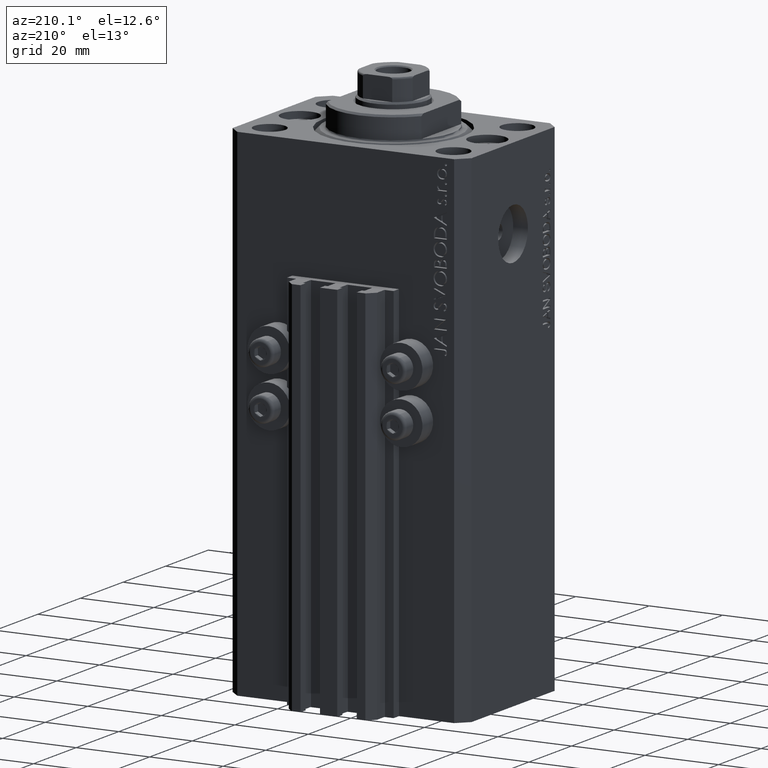
[diagram: clean part render]
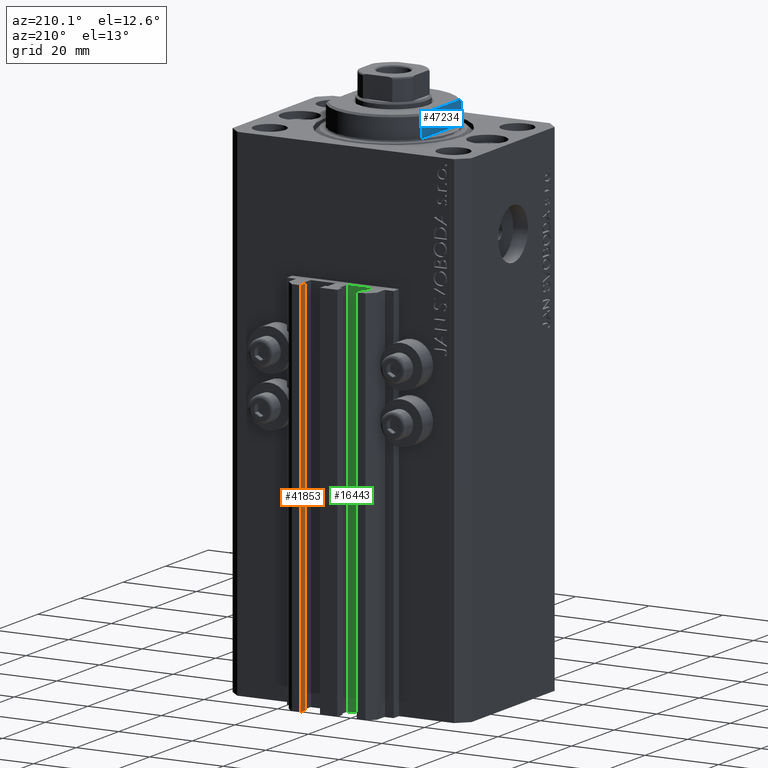
[diagram: same view with three faces highlighted in distinct colors, each labeled with its STEP entity id]
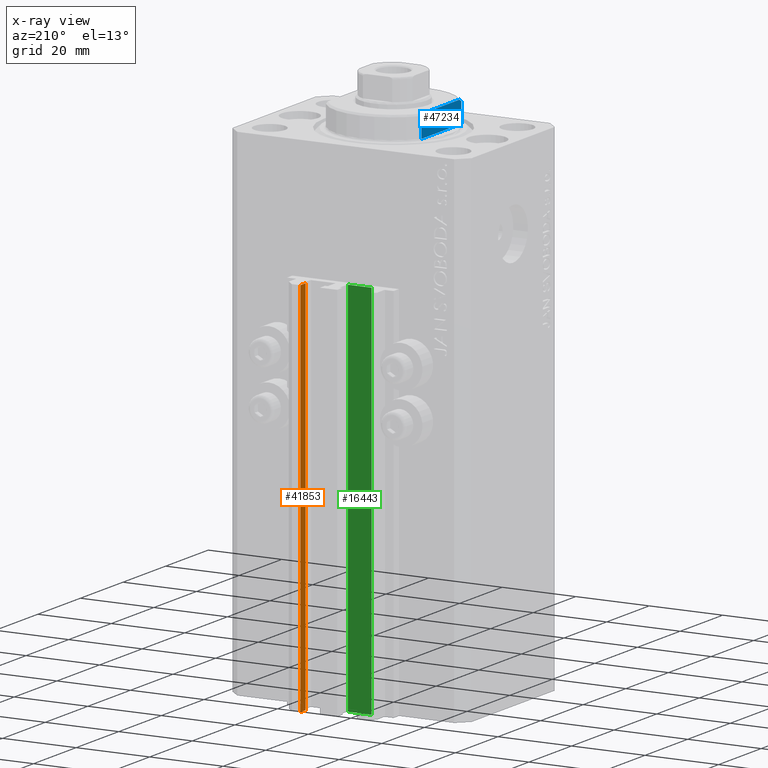
[diagram: x-ray of the same camera — body ghosted, the three highlighted faces saturated]
A machine part, auxiliary view with three faces highlighted in distinct colors.
The next image is the same camera in x-ray (body ghosted, the three faces saturated) — at least one of them is partly hidden behind the body in this view.
Their STEP definitions:

[orange] entity #41853 — the highlighted planar face has unit normal (-1, -0, 0).
#934 = CARTESIAN_POINT ( 'NONE',  ( 7.649999999999995914, 28.09999999999950404, -136.0000000000000000 ) ) ;
#1202 = EDGE_CURVE ( 'NONE', #17581, #6923, #29322, .T. ) ;
#1635 = ORIENTED_EDGE ( 'NONE', *, *, #42755, .T. ) ;
#2227 = ORIENTED_EDGE ( 'NONE', *, *, #20927, .T. ) ;
#2405 = CARTESIAN_POINT ( 'NONE',  ( 7.649999999999995914, 28.09999999999950404, -136.0000000000000000 ) ) ;
#2714 = LINE ( 'NONE', #38344, #17853 ) ;
#2851 = DIRECTION ( 'NONE',  ( -1.000000000000000000, -3.614007241618365041E-16, 0.000000000000000000 ) ) ;
#2949 = EDGE_CURVE ( 'NONE', #6923, #33157, #2714, .T. ) ;
#3314 = PLANE ( 'NONE',  #21170 ) ;
#3678 = VECTOR ( 'NONE', #42263, 1000.000000000000000 ) ;
#5645 = DIRECTION ( 'NONE',  ( 3.614007241618365534E-16, -1.000000000000000000, 0.000000000000000000 ) ) ;
#5646 = VECTOR ( 'NONE', #46760, 1000.000000000000000 ) ;
#6746 = EDGE_LOOP ( 'NONE', ( #21821, #20406, #1635, #2227 ) ) ;
#6923 = VERTEX_POINT ( 'NONE', #46707 ) ;
#14299 = CARTESIAN_POINT ( 'NONE',  ( 7.649999999999995026, 30.49999999999949196, -136.0000000000000000 ) ) ;
#16958 = LINE ( 'NONE', #38228, #3678 ) ;
#17401 = DIRECTION ( 'NONE',  ( 3.614007241618365041E-16, -1.000000000000000000, 0.000000000000000000 ) ) ;
#17581 = VERTEX_POINT ( 'NONE', #30941 ) ;
#17853 = VECTOR ( 'NONE', #5645, 1000.000000000000000 ) ;
#20406 = ORIENTED_EDGE ( 'NONE', *, *, #1202, .F. ) ;
#20927 = EDGE_CURVE ( 'NONE', #29155, #33157, #28167, .T. ) ;
#21170 = AXIS2_PLACEMENT_3D ( 'NONE', #25027, #2851, #17401 ) ;
#21220 = DIRECTION ( 'NONE',  ( 0.000000000000000000, 0.000000000000000000, 1.000000000000000000 ) ) ;
#21821 = ORIENTED_EDGE ( 'NONE', *, *, #2949, .F. ) ;
#25027 = CARTESIAN_POINT ( 'NONE',  ( 7.649999999999995026, 30.49999999999949196, -136.0000000000000000 ) ) ;
#28167 = LINE ( 'NONE', #2405, #32697 ) ;
#29155 = VERTEX_POINT ( 'NONE', #934 ) ;
#29322 = LINE ( 'NONE', #14299, #5646 ) ;
#30941 = CARTESIAN_POINT ( 'NONE',  ( 7.649999999999995026, 30.49999999999949196, -136.0000000000000000 ) ) ;
#32697 = VECTOR ( 'NONE', #21220, 1000.000000000000000 ) ;
#33157 = VERTEX_POINT ( 'NONE', #41024 ) ;
#35548 = FACE_OUTER_BOUND ( 'NONE', #6746, .T. ) ;
#38228 = CARTESIAN_POINT ( 'NONE',  ( 7.649999999999995026, 30.49999999999949196, -136.0000000000000000 ) ) ;
#38344 = CARTESIAN_POINT ( 'NONE',  ( 7.649999999999995026, 30.49999999999949196, -33.00000000000000000 ) ) ;
#41024 = CARTESIAN_POINT ( 'NONE',  ( 7.649999999999995914, 28.09999999999950404, -33.00000000000000000 ) ) ;
#41853 = ADVANCED_FACE ( 'NONE', ( #35548 ), #3314, .T. ) ;
#42263 = DIRECTION ( 'NONE',  ( 3.614007241618365534E-16, -1.000000000000000000, 0.000000000000000000 ) ) ;
#42755 = EDGE_CURVE ( 'NONE', #17581, #29155, #16958, .T. ) ;
#46707 = CARTESIAN_POINT ( 'NONE',  ( 7.649999999999995026, 30.49999999999949196, -33.00000000000000000 ) ) ;
#46760 = DIRECTION ( 'NONE',  ( 0.000000000000000000, 0.000000000000000000, 1.000000000000000000 ) ) ;

[blue] entity #47234 — the highlighted planar face has unit normal (-1, 0, 0).
#445 = CARTESIAN_POINT ( 'NONE',  ( 13.00000000000000000, 8.440971508067139695, -6.500000000000000000 ) ) ;
#721 = B_SPLINE_CURVE_WITH_KNOTS ( 'NONE', 3,
 ( #1921, #45591, #976, #12915 ),
 .UNSPECIFIED., .F., .F.,
 ( 4, 4 ),
 ( 0.04915043732154477513, 0.05017913261572019834 ),
 .UNSPECIFIED. ) ;
#976 = CARTESIAN_POINT ( 'NONE',  ( 13.00000000000000000, -9.034292940839600661, -6.170857829009063877 ) ) ;
#1921 = CARTESIAN_POINT ( 'NONE',  ( 13.00000000000000000, -8.440971508067139695, -6.500000000000000000 ) ) ;
#3313 = CARTESIAN_POINT ( 'NONE',  ( 13.00000000000000000, -43.08131845707602992, -0.4999999999999995559 ) ) ;
#3374 = CARTESIAN_POINT ( 'NONE',  ( 13.00000000000000000, -9.327379053088815652, -6.000000000000023981 ) ) ;
#6432 = VECTOR ( 'NONE', #6457, 1000.000000000000000 ) ;
#6457 = DIRECTION ( 'NONE',  ( -0.000000000000000000, -0.000000000000000000, 1.000000000000000000 ) ) ;
#7198 = CARTESIAN_POINT ( 'NONE',  ( 13.00000000000000000, 9.327379053088916905, -6.000000000000014211 ) ) ;
#7594 = EDGE_CURVE ( 'NONE', #20989, #27327, #721, .T. ) ;
#9290 = CARTESIAN_POINT ( 'NONE',  ( 13.00000000000000000, 9.034035639617135516, -6.171007825636148247 ) ) ;
#9491 = VECTOR ( 'NONE', #42232, 1000.000000000000000 ) ;
#10004 = CARTESIAN_POINT ( 'NONE',  ( 13.00000000000000000, 8.440971508067139695, -6.500000000000000000 ) ) ;
#10855 = VERTEX_POINT ( 'NONE', #7198 ) ;
#11456 = VERTEX_POINT ( 'NONE', #46645 ) ;
#11570 = ORIENTED_EDGE ( 'NONE', *, *, #7594, .F. ) ;
#12915 = CARTESIAN_POINT ( 'NONE',  ( 13.00000000000000000, -9.327379053088815652, -6.000000000000023981 ) ) ;
#13151 = CARTESIAN_POINT ( 'NONE',  ( 13.00000000000000000, 9.327379053088813876, -6.500000000000000000 ) ) ;
#13888 = LINE ( 'NONE', #39417, #38711 ) ;
#14340 = VECTOR ( 'NONE', #31417, 1000.000000000000000 ) ;
#15191 = VERTEX_POINT ( 'NONE', #445 ) ;
#16311 = ORIENTED_EDGE ( 'NONE', *, *, #28316, .T. ) ;
#16388 = ORIENTED_EDGE ( 'NONE', *, *, #40692, .T. ) ;
#17860 = DIRECTION ( 'NONE',  ( 1.000000000000000000, 0.000000000000000000, -0.000000000000000000 ) ) ;
#19711 = CARTESIAN_POINT ( 'NONE',  ( 13.00000000000000000, -43.08131845707602992, -6.500000000000000000 ) ) ;
#20142 = VERTEX_POINT ( 'NONE', #37018 ) ;
#20476 = CARTESIAN_POINT ( 'NONE',  ( 13.00000000000000000, 8.738667591047024175, -6.337881022290547506 ) ) ;
#20989 = VERTEX_POINT ( 'NONE', #44132 ) ;
#21893 = FACE_OUTER_BOUND ( 'NONE', #45074, .T. ) ;
#24295 = CARTESIAN_POINT ( 'NONE',  ( 13.00000000000000000, 9.327379053088916905, -6.000000000000014211 ) ) ;
#27327 = VERTEX_POINT ( 'NONE', #3374 ) ;
#27349 = LINE ( 'NONE', #19711, #14340 ) ;
#27549 = EDGE_CURVE ( 'NONE', #20142, #11456, #31271, .T. ) ;
#28316 = EDGE_CURVE ( 'NONE', #10855, #20142, #35558, .T. ) ;
#28453 = ORIENTED_EDGE ( 'NONE', *, *, #42942, .F. ) ;
#31271 = LINE ( 'NONE', #45823, #9491 ) ;
#31417 = DIRECTION ( 'NONE',  ( 0.000000000000000000, -1.000000000000000000, -0.000000000000000000 ) ) ;
#35558 = LINE ( 'NONE', #13151, #6432 ) ;
#36010 = PLANE ( 'NONE',  #39527 ) ;
#37018 = CARTESIAN_POINT ( 'NONE',  ( 13.00000000000000000, 9.327379053088815652, -0.4999999999999995559 ) ) ;
#38711 = VECTOR ( 'NONE', #39183, 1000.000000000000000 ) ;
#39183 = DIRECTION ( 'NONE',  ( 0.000000000000000000, 0.000000000000000000, -1.000000000000000000 ) ) ;
#39417 = CARTESIAN_POINT ( 'NONE',  ( 13.00000000000000000, -9.327379053088813876, -6.500000000000000000 ) ) ;
#39512 = ORIENTED_EDGE ( 'NONE', *, *, #27549, .T. ) ;
#39527 = AXIS2_PLACEMENT_3D ( 'NONE', #3313, #17860, #43871 ) ;
#39858 = EDGE_CURVE ( 'NONE', #10855, #15191, #42158, .T. ) ;
#40692 = EDGE_CURVE ( 'NONE', #11456, #27327, #13888, .T. ) ;
#42158 = B_SPLINE_CURVE_WITH_KNOTS ( 'NONE', 3,
 ( #24295, #9290, #20476, #10004 ),
 .UNSPECIFIED., .F., .F.,
 ( 4, 4 ),
 ( 0.03031084603841393416, 0.03132841702658675093 ),
 .UNSPECIFIED. ) ;
#42232 = DIRECTION ( 'NONE',  ( 0.000000000000000000, -1.000000000000000000, -0.000000000000000000 ) ) ;
#42942 = EDGE_CURVE ( 'NONE', #15191, #20989, #27349, .T. ) ;
#43871 = DIRECTION ( 'NONE',  ( -0.000000000000000000, 0.000000000000000000, -1.000000000000000000 ) ) ;
#44132 = CARTESIAN_POINT ( 'NONE',  ( 13.00000000000000000, -8.440971508067139695, -6.500000000000000000 ) ) ;
#45074 = EDGE_LOOP ( 'NONE', ( #16311, #39512, #16388, #11570, #28453, #47125 ) ) ;
#45591 = CARTESIAN_POINT ( 'NONE',  ( 13.00000000000000000, -8.738941625005658409, -6.337731789204285704 ) ) ;
#45823 = CARTESIAN_POINT ( 'NONE',  ( 13.00000000000000000, -43.08131845707602992, -0.4999999999999995559 ) ) ;
#46645 = CARTESIAN_POINT ( 'NONE',  ( 13.00000000000000000, -9.327379053088815652, -0.4999999999999995559 ) ) ;
#47125 = ORIENTED_EDGE ( 'NONE', *, *, #39858, .F. ) ;
#47234 = ADVANCED_FACE ( 'NONE', ( #21893 ), #36010, .T. ) ;

[green] entity #16443 — the highlighted planar face has unit normal (0, 1, 0).
#1499 = EDGE_CURVE ( 'NONE', #7926, #11069, #14019, .T. ) ;
#5811 = CARTESIAN_POINT ( 'NONE',  ( -1.800000000000000933, 24.49999999999949551, -136.0000000000000000 ) ) ;
#6453 = VERTEX_POINT ( 'NONE', #20090 ) ;
#6708 = DIRECTION ( 'NONE',  ( -1.000000000000000000, 0.000000000000000000, 0.000000000000000000 ) ) ;
#6941 = CARTESIAN_POINT ( 'NONE',  ( -1.800000000000000933, 24.49999999999949551, -136.0000000000000000 ) ) ;
#7281 = VERTEX_POINT ( 'NONE', #5811 ) ;
#7296 = CARTESIAN_POINT ( 'NONE',  ( -1.800000000000000933, 24.49999999999949551, -33.00000000000000000 ) ) ;
#7622 = EDGE_LOOP ( 'NONE', ( #10329, #33138, #33095, #28034 ) ) ;
#7926 = VERTEX_POINT ( 'NONE', #40737 ) ;
#8744 = VECTOR ( 'NONE', #10288, 1000.000000000000000 ) ;
#9517 = PLANE ( 'NONE',  #38879 ) ;
#10288 = DIRECTION ( 'NONE',  ( 0.000000000000000000, 0.000000000000000000, 1.000000000000000000 ) ) ;
#10329 = ORIENTED_EDGE ( 'NONE', *, *, #40278, .F. ) ;
#10350 = VECTOR ( 'NONE', #6708, 1000.000000000000000 ) ;
#11069 = VERTEX_POINT ( 'NONE', #29843 ) ;
#13872 = LINE ( 'NONE', #6941, #8744 ) ;
#14019 = LINE ( 'NONE', #29264, #33048 ) ;
#16443 = ADVANCED_FACE ( 'NONE', ( #35035 ), #9517, .T. ) ;
#20090 = CARTESIAN_POINT ( 'NONE',  ( -1.800000000000000933, 24.49999999999949551, -33.00000000000000000 ) ) ;
#22630 = VECTOR ( 'NONE', #28299, 1000.000000000000000 ) ;
#24821 = CARTESIAN_POINT ( 'NONE',  ( -1.800000000000000933, 24.49999999999949551, -136.0000000000000000 ) ) ;
#25411 = LINE ( 'NONE', #7296, #22630 ) ;
#28034 = ORIENTED_EDGE ( 'NONE', *, *, #1499, .T. ) ;
#28108 = CARTESIAN_POINT ( 'NONE',  ( -1.800000000000000933, 24.49999999999949551, -136.0000000000000000 ) ) ;
#28299 = DIRECTION ( 'NONE',  ( -1.000000000000000000, 0.000000000000000000, 0.000000000000000000 ) ) ;
#29264 = CARTESIAN_POINT ( 'NONE',  ( -8.199999999999999289, 24.49999999999949551, -136.0000000000000000 ) ) ;
#29843 = CARTESIAN_POINT ( 'NONE',  ( -8.199999999999999289, 24.49999999999949551, -33.00000000000000000 ) ) ;
#32850 = DIRECTION ( 'NONE',  ( 0.000000000000000000, 0.000000000000000000, 1.000000000000000000 ) ) ;
#33048 = VECTOR ( 'NONE', #32850, 1000.000000000000000 ) ;
#33095 = ORIENTED_EDGE ( 'NONE', *, *, #35432, .T. ) ;
#33102 = EDGE_CURVE ( 'NONE', #7281, #6453, #13872, .T. ) ;
#33138 = ORIENTED_EDGE ( 'NONE', *, *, #33102, .F. ) ;
#35035 = FACE_OUTER_BOUND ( 'NONE', #7622, .T. ) ;
#35432 = EDGE_CURVE ( 'NONE', #7281, #7926, #45847, .T. ) ;
#38633 = DIRECTION ( 'NONE',  ( 0.000000000000000000, 1.000000000000000000, -0.000000000000000000 ) ) ;
#38879 = AXIS2_PLACEMENT_3D ( 'NONE', #28108, #38633, #41964 ) ;
#40278 = EDGE_CURVE ( 'NONE', #6453, #11069, #25411, .T. ) ;
#40737 = CARTESIAN_POINT ( 'NONE',  ( -8.199999999999999289, 24.49999999999949551, -136.0000000000000000 ) ) ;
#41964 = DIRECTION ( 'NONE',  ( 0.000000000000000000, 0.000000000000000000, 1.000000000000000000 ) ) ;
#45847 = LINE ( 'NONE', #24821, #10350 ) ;